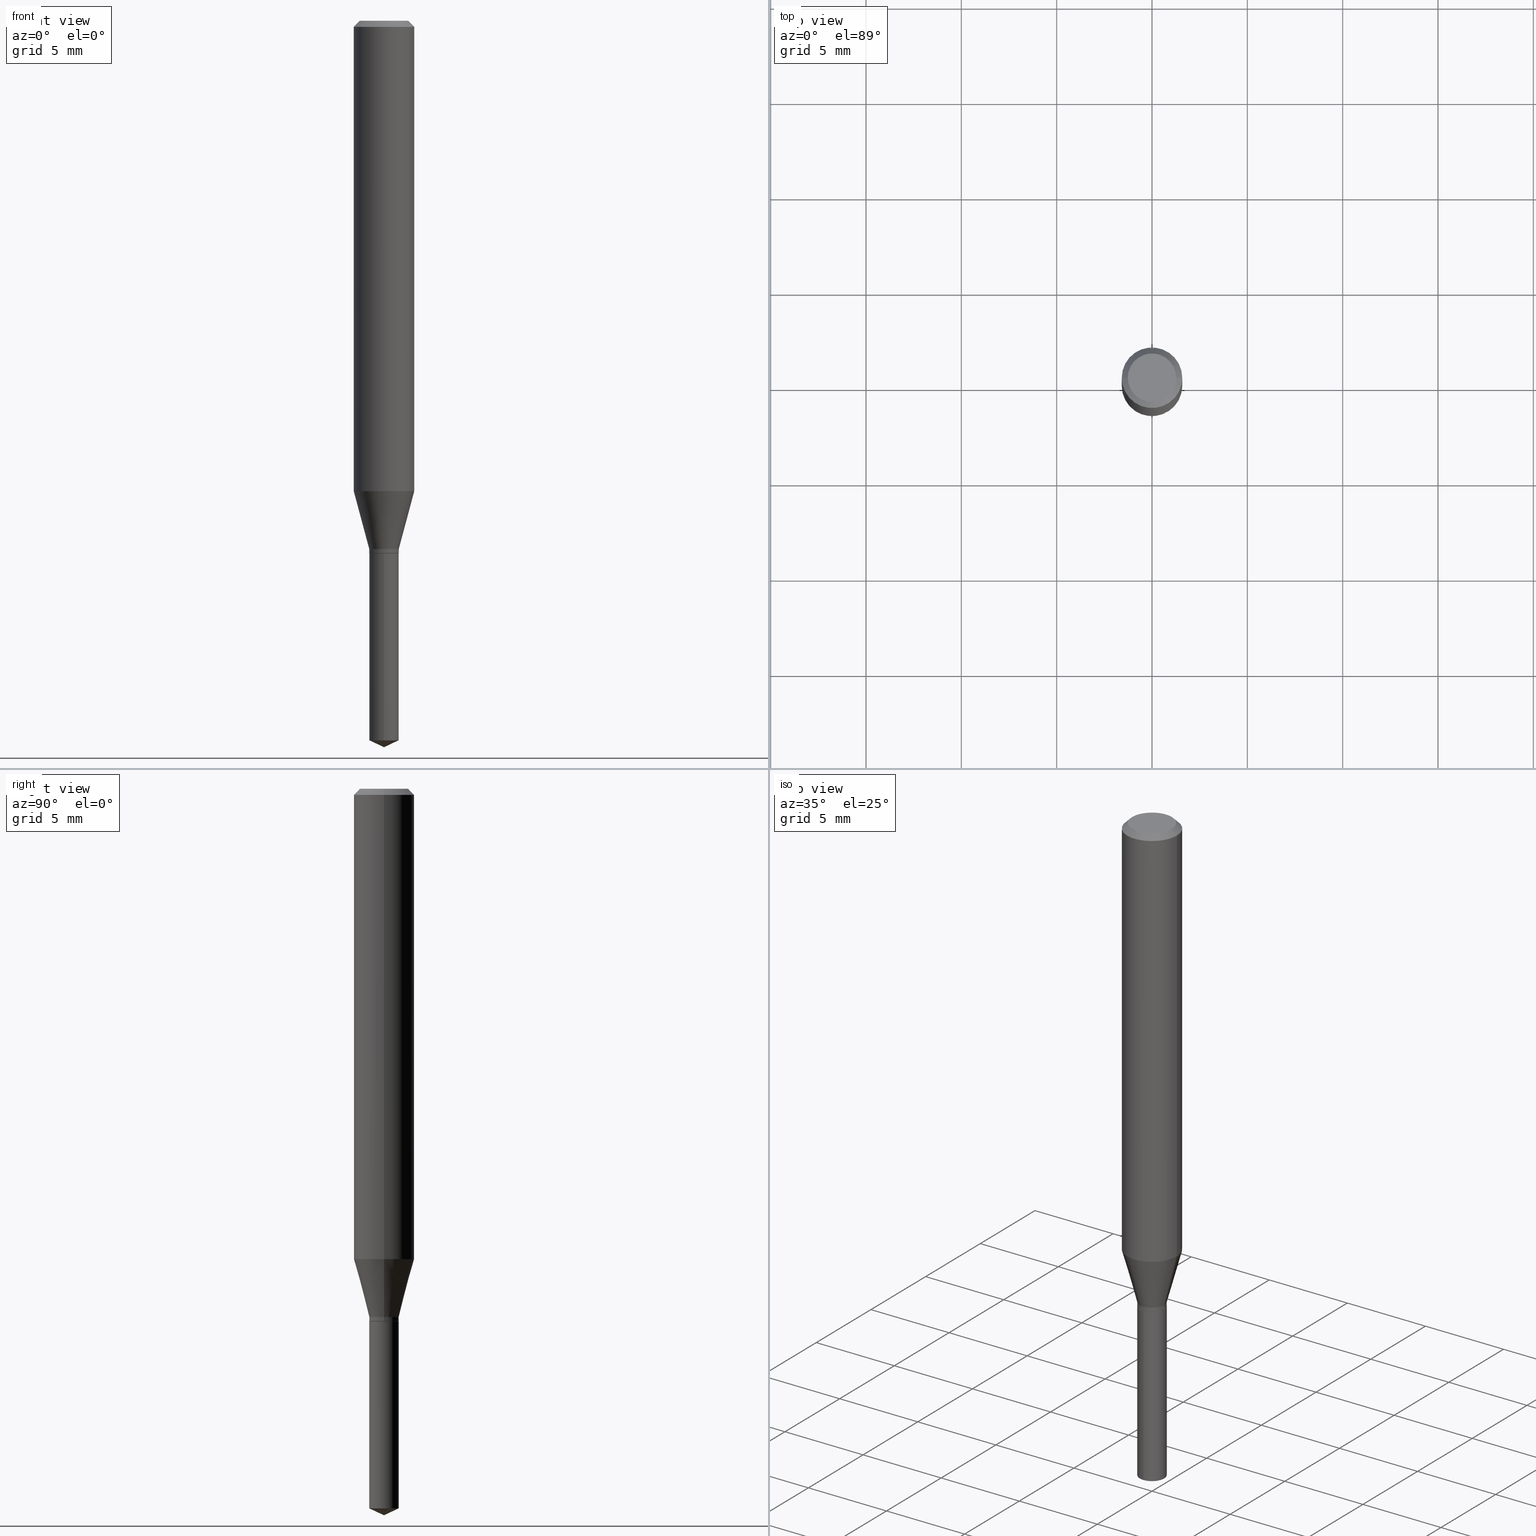
[diagram: canonical four-view strip — front | top / right | iso, engineering-drawing reading convention]
A machine part, canonical four-view strip (front | top / right | iso — engineering-drawing reading convention). The complete STEP part file that produces these views, byte-faithful:
ISO-10303-21;
HEADER;
FILE_DESCRIPTION (( 'STEP AP203' ),
    '1' );
FILE_NAME ('07173.STEP',
    '2024-04-23T19:53:03',
    ( '' ),
    ( '' ),
    'SwSTEP 2.0',
    'SolidWorks 2023',
    '' );
FILE_SCHEMA (( 'CONFIG_CONTROL_DESIGN' ));
ENDSEC;

DATA;
#1 = FACE_OUTER_BOUND ( 'NONE', #263, .T. ) ;
#2 = CC_DESIGN_PERSON_AND_ORGANIZATION_ASSIGNMENT ( #49, #34, ( #464 ) ) ;
#3 = CALENDAR_DATE ( 2024, 23, 4 ) ;
#4 = DIRECTION ( 'NONE',  ( -2.445468806185136597E-29, 3.491481338843145583E-15, 1.000000000000000000 ) ) ;
#5 = CYLINDRICAL_SURFACE ( 'NONE', #53, 0.06250000000000005551 ) ;
#6 = CIRCLE ( 'NONE', #36, 0.06250000000000000000 ) ;
#7 = AXIS2_PLACEMENT_3D ( 'NONE', #382, #159, #8 ) ;
#8 = DIRECTION ( 'NONE',  ( -6.982962677686265922E-15, -1.000000000000000000, 4.478439333875842027E-15 ) ) ;
#9 = LINE ( 'NONE', #281, #197 ) ;
#10 = ORIENTED_EDGE ( 'NONE', *, *, #187, .F. ) ;
#11 = CALENDAR_DATE ( 2024, 23, 4 ) ;
#12 = LINE ( 'NONE', #461, #118 ) ;
#13 = CONICAL_SURFACE ( 'NONE', #79, 0.03049999999999999586, 0.2617993877991499629 ) ;
#14 = CARTESIAN_POINT ( 'NONE',  ( 2.167155344068669628E-16, 0.03049999999999615866, -1.100000000000000089 ) ) ;
#15 = AXIS2_PLACEMENT_3D ( 'NONE', #455, #113, #44 ) ;
#16 = DIRECTION ( 'NONE',  ( -2.445399690415121530E-29, 3.491580316559632610E-15, 1.000000000000000000 ) ) ;
#17 = VERTEX_POINT ( 'NONE', #326 ) ;
#18 = FACE_OUTER_BOUND ( 'NONE', #209, .T. ) ;
#19 = LOCAL_TIME ( 15, 53, 3.000000000000000000, #155 ) ;
#20 = VERTEX_POINT ( 'NONE', #63 ) ;
#21 = EDGE_CURVE ( 'NONE', #20, #363, #23, .T. ) ;
#22 = CARTESIAN_POINT ( 'NONE',  ( 2.167155344068573979E-16, 0.03049999999999615519, -1.100000000000000089 ) ) ;
#23 = LINE ( 'NONE', #178, #395 ) ;
#24 = CARTESIAN_POINT ( 'NONE',  ( 2.690015686803650369E-29, -3.840629472727460101E-15, -1.100000000000000089 ) ) ;
#25 = ORIENTED_EDGE ( 'NONE', *, *, #309, .T. ) ;
#26 = ADVANCED_FACE ( 'NONE', ( #76 ), #153, .T. ) ;
#27 = LINE ( 'NONE', #22, #45 ) ;
#28 =( GEOMETRIC_REPRESENTATION_CONTEXT ( 3 ) GLOBAL_UNCERTAINTY_ASSIGNED_CONTEXT ( ( #105 ) ) GLOBAL_UNIT_ASSIGNED_CONTEXT ( ( #58, #359, #259 ) ) REPRESENTATION_CONTEXT ( 'NONE', 'WORKASPACE' ) );
#29 = ORIENTED_EDGE ( 'NONE', *, *, #222, .T. ) ;
#30 = DATE_AND_TIME ( #305, #236 ) ;
#31 = ORIENTED_EDGE ( 'NONE', *, *, #351, .T. ) ;
#32 = APPROVAL_DATE_TIME ( #121, #460 ) ;
#33 = FACE_OUTER_BOUND ( 'NONE', #398, .T. ) ;
#34 = PERSON_AND_ORGANIZATION_ROLE ( 'design_supplier' ) ;
#35 = DIRECTION ( 'NONE',  ( -2.445399690415121530E-29, 3.491580316559632610E-15, 1.000000000000000000 ) ) ;
#36 = AXIS2_PLACEMENT_3D ( 'NONE', #246, #469, #429 ) ;
#37 = EDGE_CURVE ( 'NONE', #176, #473, #338, .T. ) ;
#38 = AXIS2_PLACEMENT_3D ( 'NONE', #192, #4, #193 ) ;
#39 = PERSON_AND_ORGANIZATION_ROLE ( 'creator' ) ;
#40 = CARTESIAN_POINT ( 'NONE',  ( 2.690015686803650369E-29, -3.840629472727460101E-15, -1.100000000000000089 ) ) ;
#41 = CARTESIAN_POINT ( 'NONE',  ( 0.03049999999999999586, -4.020789909811766369E-15, -1.090600000000000014 ) ) ;
#42 = ADVANCED_FACE ( 'NONE', ( #1 ), #341, .T. ) ;
#43 = DIMENSIONAL_EXPONENTS ( 1.000000000000000000, 0.000000000000000000, 0.000000000000000000, 0.000000000000000000, 0.000000000000000000, 0.000000000000000000, 0.000000000000000000 ) ;
#44 = DIRECTION ( 'NONE',  ( -1.000000000000000000, 6.982962677686266711E-15, 0.000000000000000000 ) ) ;
#45 = VECTOR ( 'NONE', #223, 39.37007874015748143 ) ;
#46 = AXIS2_PLACEMENT_3D ( 'NONE', #388, #90, #167 ) ;
#47 = CARTESIAN_POINT ( 'NONE',  ( 3.056836007731442729E-31, -4.364351673553962300E-17, -0.01250000000000008916 ) ) ;
#48 = ORIENTED_EDGE ( 'NONE', *, *, #268, .T. ) ;
#49 = PERSON_AND_ORGANIZATION ( #449, #393 ) ;
#50 = CARTESIAN_POINT ( 'NONE',  ( -0.03049999999999999586, -3.606631105693356467E-15, -1.099499999999999922 ) ) ;
#51 = LINE ( 'NONE', #84, #142 ) ;
#52 = EDGE_CURVE ( 'NONE', #462, #363, #231, .T. ) ;
#53 = AXIS2_PLACEMENT_3D ( 'NONE', #343, #83, #109 ) ;
#54 = DIRECTION ( 'NONE',  ( -6.982962677686265922E-15, -1.000000000000000000, 0.000000000000000000 ) ) ;
#55 = DESIGN_CONTEXT ( 'detailed design', #190, 'design' ) ;
#56 = FACE_OUTER_BOUND ( 'NONE', #137, .T. ) ;
#57 = EDGE_LOOP ( 'NONE', ( #139, #29, #390, #277 ) ) ;
#58 =( CONVERSION_BASED_UNIT ( 'INCH', #291 ) LENGTH_UNIT ( ) NAMED_UNIT ( #43 ) );
#59 = EDGE_CURVE ( 'NONE', #404, #162, #271, .T. ) ;
#60 = ORIENTED_EDGE ( 'NONE', *, *, #216, .F. ) ;
#61 = AXIS2_PLACEMENT_3D ( 'NONE', #47, #314, #319 ) ;
#62 = CARTESIAN_POINT ( 'NONE',  ( -0.06250000000000012490, -2.946747994284551649E-15, -0.9711743741577958389 ) ) ;
#63 = CARTESIAN_POINT ( 'NONE',  ( 3.668099535622682715E-29, -5.237370474839449507E-15, -1.500000000000000222 ) ) ;
#64 = DIRECTION ( 'NONE',  ( -2.445468806185136877E-29, 3.491481338843145188E-15, 1.000000000000000000 ) ) ;
#65 = ORIENTED_EDGE ( 'NONE', *, *, #445, .T. ) ;
#66 = EDGE_CURVE ( 'NONE', #258, #290, #213, .T. ) ;
#67 = CARTESIAN_POINT ( 'NONE',  ( 0.03049999999999999586, -4.020789909811766369E-15, -1.090600000000000014 ) ) ;
#68 = ORIENTED_EDGE ( 'NONE', *, *, #268, .F. ) ;
#69 = DIRECTION ( 'NONE',  ( 2.445399690415121250E-29, -3.491580316559632610E-15, -1.000000000000000000 ) ) ;
#70 = CIRCLE ( 'NONE', #61, 0.06250000000000000000 ) ;
#71 = ORIENTED_EDGE ( 'NONE', *, *, #21, .T. ) ;
#72 = CONICAL_SURFACE ( 'NONE', #490, 0.02999999999999999542, 0.7853981633974141952 ) ;
#73 = DATE_AND_TIME ( #11, #19 ) ;
#74 = CARTESIAN_POINT ( 'NONE',  ( 3.056836007731442729E-31, -4.364351673553962300E-17, -0.01250000000000008916 ) ) ;
#75 = ADVANCED_FACE ( 'NONE', ( #308 ), #72, .T. ) ;
#76 = FACE_OUTER_BOUND ( 'NONE', #333, .T. ) ;
#77 = PERSON_AND_ORGANIZATION_ROLE ( 'classification_officer' ) ;
#78 = CYLINDRICAL_SURFACE ( 'NONE', #211, 0.03049999999999999586 ) ;
#79 = AXIS2_PLACEMENT_3D ( 'NONE', #430, #235, #202 ) ;
#80 = CONICAL_SURFACE ( 'NONE', #411, 0.03049999999999999586, 0.2617993877991499629 ) ;
#81 = CARTESIAN_POINT ( 'NONE',  ( 0.06250000000000000000, -4.724246415962603826E-16, -0.01250000000000008916 ) ) ;
#82 = PRODUCT_RELATED_PRODUCT_CATEGORY ( 'detail', '', ( #280 ) ) ;
#83 = DIRECTION ( 'NONE',  ( -2.445468806185136597E-29, 3.491481338843145583E-15, 1.000000000000000000 ) ) ;
#84 = CARTESIAN_POINT ( 'NONE',  ( -0.03049999999999999586, -3.591094013735504691E-15, -1.090600000000000014 ) ) ;
#85 = PERSON_AND_ORGANIZATION ( #449, #393 ) ;
#86 = CIRCLE ( 'NONE', #456, 0.03049999999999999586 ) ;
#87 = DIRECTION ( 'NONE',  ( -2.445468806185136597E-29, 3.491481338843145583E-15, 1.000000000000000000 ) ) ;
#88 = ORIENTED_EDGE ( 'NONE', *, *, #351, .F. ) ;
#89 = PERSON_AND_ORGANIZATION ( #449, #393 ) ;
#90 = DIRECTION ( 'NONE',  ( -2.445468806185136597E-29, 3.491481338843145583E-15, 1.000000000000000000 ) ) ;
#91 = ADVANCED_FACE ( 'NONE', ( #420 ), #5, .T. ) ;
#92 = ORIENTED_EDGE ( 'NONE', *, *, #396, .T. ) ;
#93 = CARTESIAN_POINT ( 'NONE',  ( -0.06250000000000000000, 3.927916506198520587E-16, -0.01250000000000008916 ) ) ;
#94 = CONICAL_SURFACE ( 'NONE', #116, 84.42940631927602624, 1.134464013796323556 ) ;
#95 = CARTESIAN_POINT ( 'NONE',  ( 3.633396150581541585E-29, -5.187603004810727397E-15, -1.485777616426273040 ) ) ;
#96 = ORIENTED_EDGE ( 'NONE', *, *, #66, .F. ) ;
#97 = ADVANCED_FACE ( 'NONE', ( #375 ), #270, .F. ) ;
#98 = LINE ( 'NONE', #67, #329 ) ;
#99 = VERTEX_POINT ( 'NONE', #339 ) ;
#100 = DIRECTION ( 'NONE',  ( 1.000000000000000000, -6.982962677686265922E-15, 4.875957971899673662E-29 ) ) ;
#101 = ORIENTED_EDGE ( 'NONE', *, *, #110, .T. ) ;
#102 = ORIENTED_EDGE ( 'NONE', *, *, #37, .T. ) ;
#103 = DIRECTION ( 'NONE',  ( -6.982962677686268288E-15, -1.000000000000000000, 3.520397390770383661E-15 ) ) ;
#104 = ORIENTED_EDGE ( 'NONE', *, *, #187, .T. ) ;
#105 = UNCERTAINTY_MEASURE_WITH_UNIT (LENGTH_MEASURE( 1.000000000000000082E-05 ), #58, 'distance_accuracy_value', 'NONE');
#106 = CARTESIAN_POINT ( 'NONE',  ( 3.668252923656895710E-29, -5.237152723863177100E-15, -1.500000000000000222 ) ) ;
#107 = VERTEX_POINT ( 'NONE', #154 ) ;
#108 = APPROVAL_ROLE ( '' ) ;
#109 = DIRECTION ( 'NONE',  ( 1.000000000000000000, -6.982962677686267499E-15, 4.876176775795936353E-29 ) ) ;
#110 = EDGE_CURVE ( 'NONE', #363, #404, #302, .T. ) ;
#111 = SHAPE_DEFINITION_REPRESENTATION ( #160, #245 ) ;
#112 = DIRECTION ( 'NONE',  ( -2.445468806185136597E-29, 3.491481338843145583E-15, 1.000000000000000000 ) ) ;
#113 = DIRECTION ( 'NONE',  ( 2.445468806185136597E-29, -3.491481338843145583E-15, -1.000000000000000000 ) ) ;
#114 = MANIFOLD_SOLID_BREP ( 'Body-Move/Copy2[2]', #323 ) ;
#115 = DIRECTION ( 'NONE',  ( 1.000000000000000000, -6.982962677686269866E-15, 0.000000000000000000 ) ) ;
#116 = AXIS2_PLACEMENT_3D ( 'NONE', #180, #399, #177 ) ;
#117 = ADVANCED_FACE ( 'NONE', ( #487 ), #248, .T. ) ;
#118 = VECTOR ( 'NONE', #355, 39.37007874015748143 ) ;
#119 = DIRECTION ( 'NONE',  ( -2.445399690415121530E-29, 3.491580316559632610E-15, 1.000000000000000000 ) ) ;
#120 = DIRECTION ( 'NONE',  ( -6.982962677686265922E-15, -1.000000000000000000, 4.478439333875842027E-15 ) ) ;
#121 = DATE_AND_TIME ( #3, #384 ) ;
#122 = DIRECTION ( 'NONE',  ( -2.445468806185136877E-29, 3.491481338843145188E-15, 1.000000000000000000 ) ) ;
#123 = MANIFOLD_SOLID_BREP ( 'Body-Move/Copy2[1]', #257 ) ;
#124 = ORIENTED_EDGE ( 'NONE', *, *, #52, .F. ) ;
#125 = CC_DESIGN_SECURITY_CLASSIFICATION ( #151, ( #464 ) ) ;
#126 = DATE_TIME_ROLE ( 'classification_date' ) ;
#127 = APPLICATION_CONTEXT ( 'configuration controlled 3d designs of mechanical parts and assemblies' ) ;
#128 = EDGE_CURVE ( 'NONE', #473, #17, #345, .T. ) ;
#129 = DIRECTION ( 'NONE',  ( -2.445468806185136597E-29, 3.491481338843145583E-15, 1.000000000000000000 ) ) ;
#130 = VERTEX_POINT ( 'NONE', #414 ) ;
#131 = CYLINDRICAL_SURFACE ( 'NONE', #378, 0.06250000000000005551 ) ;
#132 = CARTESIAN_POINT ( 'NONE',  ( -0.02999999999999999542, -3.627466651999429856E-15, -1.100000000000000089 ) ) ;
#133 = ADVANCED_FACE ( 'NONE', ( #33 ), #80, .T. ) ;
#134 = AXIS2_PLACEMENT_3D ( 'NONE', #140, #69, #253 ) ;
#135 = VECTOR ( 'NONE', #265, 39.37007874015748143 ) ;
#136 = CARTESIAN_POINT ( 'NONE',  ( 2.167155344068668396E-16, 0.03049999999999481251, -1.485777616426273040 ) ) ;
#137 = EDGE_LOOP ( 'NONE', ( #65, #372, #68, #141 ) ) ;
#138 = CYLINDRICAL_SURFACE ( 'NONE', #293, 0.03049999999999999586 ) ;
#139 = ORIENTED_EDGE ( 'NONE', *, *, #288, .F. ) ;
#140 = CARTESIAN_POINT ( 'NONE',  ( 2.690015686803650369E-29, -3.840629472727460101E-15, -1.100000000000000089 ) ) ;
#141 = ORIENTED_EDGE ( 'NONE', *, *, #179, .F. ) ;
#142 = VECTOR ( 'NONE', #394, 39.37007874015748854 ) ;
#143 =( LENGTH_UNIT ( ) NAMED_UNIT ( * ) SI_UNIT ( $, .METRE. ) );
#144 = EDGE_CURVE ( 'NONE', #107, #145, #294, .T. ) ;
#145 = VERTEX_POINT ( 'NONE', #41 ) ;
#146 = DIRECTION ( 'NONE',  ( -2.445468806185136597E-29, 3.491481338843145583E-15, 1.000000000000000000 ) ) ;
#147 = ORIENTED_EDGE ( 'NONE', *, *, #244, .F. ) ;
#148 = EDGE_LOOP ( 'NONE', ( #255, #240, #250, #400 ) ) ;
#149 = ADVANCED_FACE ( 'NONE', ( #335 ), #78, .T. ) ;
#150 = APPROVAL_DATE_TIME ( #486, #467 ) ;
#151 = SECURITY_CLASSIFICATION ( '', '', #379 ) ;
#152 = DIRECTION ( 'NONE',  ( -2.445468806185136597E-29, 3.491481338843145583E-15, 1.000000000000000000 ) ) ;
#153 = CONICAL_SURFACE ( 'NONE', #427, 0.06250000000000000000, 0.7853981633974449483 ) ;
#154 = CARTESIAN_POINT ( 'NONE',  ( -0.03049999999999999586, -3.606631105693356467E-15, -1.090600000000000014 ) ) ;
#155 = COORDINATED_UNIVERSAL_TIME_OFFSET ( 5, 0, .BEHIND. ) ;
#156 = ADVANCED_FACE ( 'NONE', ( #415 ), #380, .T. ) ;
#157 = DIRECTION ( 'NONE',  ( -2.445468806185136597E-29, 3.491481338843145583E-15, 1.000000000000000000 ) ) ;
#158 = CARTESIAN_POINT ( 'NONE',  ( 2.688792952400557567E-29, -3.838883732058038598E-15, -1.099499999999999922 ) ) ;
#159 = DIRECTION ( 'NONE',  ( -2.445399690415121530E-29, 3.491580316559632610E-15, 1.000000000000000000 ) ) ;
#160 = PRODUCT_DEFINITION_SHAPE ( 'NONE', 'NONE',  #170 ) ;
#161 = CARTESIAN_POINT ( 'NONE',  ( 0.03049999999999999586, -2.129803616694311268E-16, 1.487233916617760256E-30 ) ) ;
#162 = VERTEX_POINT ( 'NONE', #14 ) ;
#163 = APPROVAL_DATE_TIME ( #73, #254 ) ;
#164 = CC_DESIGN_PERSON_AND_ORGANIZATION_ASSIGNMENT ( #85, #301, ( #464 ) ) ;
#165 = CARTESIAN_POINT ( 'NONE',  ( 2.688792952400557567E-29, -3.838883732058038598E-15, -1.099499999999999922 ) ) ;
#166 = AXIS2_PLACEMENT_3D ( 'NONE', #306, #233, #447 ) ;
#167 = DIRECTION ( 'NONE',  ( 1.000000000000000000, -6.982962677686269077E-15, 0.000000000000000000 ) ) ;
#168 = ORIENTED_EDGE ( 'NONE', *, *, #216, .T. ) ;
#169 = DIRECTION ( 'NONE',  ( 1.000000000000000000, -6.982962677686264344E-15, 0.000000000000000000 ) ) ;
#170 = PRODUCT_DEFINITION ( 'UNKNOWN', '', #464, #55 ) ;
#171 = DIRECTION ( 'NONE',  ( -2.445468806185136597E-29, 3.491481338843145583E-15, 1.000000000000000000 ) ) ;
#172 = ORIENTED_EDGE ( 'NONE', *, *, #454, .F. ) ;
#173 = VECTOR ( 'NONE', #362, 39.37007874015748854 ) ;
#174 = AXIS2_PLACEMENT_3D ( 'NONE', #195, #191, #115 ) ;
#175 = LINE ( 'NONE', #324, #439 ) ;
#176 = VERTEX_POINT ( 'NONE', #239 ) ;
#177 = DIRECTION ( 'NONE',  ( -6.982962677686268288E-15, -1.000000000000000000, 3.520397390770383661E-15 ) ) ;
#178 = CARTESIAN_POINT ( 'NONE',  ( 3.668099535622682155E-29, -5.237370474839448718E-15, -1.500000000000000222 ) ) ;
#179 = EDGE_CURVE ( 'NONE', #331, #17, #12, .T. ) ;
#180 = CARTESIAN_POINT ( 'NONE',  ( -9.260740279983036507E-28, 1.322265303911854087E-13, 37.87007874015748143 ) ) ;
#181 = ORIENTED_EDGE ( 'NONE', *, *, #438, .T. ) ;
#182 = VECTOR ( 'NONE', #199, 39.37007874015748854 ) ;
#183 = FACE_OUTER_BOUND ( 'NONE', #360, .T. ) ;
#184 = CIRCLE ( 'NONE', #433, 0.03049999999999999586 ) ;
#185 = ORIENTED_EDGE ( 'NONE', *, *, #261, .F. ) ;
#186 = PERSON_AND_ORGANIZATION ( #449, #393 ) ;
#187 = EDGE_CURVE ( 'NONE', #290, #258, #184, .T. ) ;
#188 = EDGE_LOOP ( 'NONE', ( #321, #71, #124 ) ) ;
#189 = APPLICATION_PROTOCOL_DEFINITION ( 'international standard', 'config_control_design', 1994, #127 ) ;
#190 = APPLICATION_CONTEXT ( 'configuration controlled 3d designs of mechanical parts and assemblies' ) ;
#191 = DIRECTION ( 'NONE',  ( -2.445468806185136597E-29, 3.491481338843145583E-15, 1.000000000000000000 ) ) ;
#192 = CARTESIAN_POINT ( 'NONE',  ( 3.893286209682126177E-47, -5.558580879666067980E-33, -1.592040838891559689E-18 ) ) ;
#193 = DIRECTION ( 'NONE',  ( 1.000000000000000000, -6.982962677686265922E-15, 4.875957971899673662E-29 ) ) ;
#194 = CC_DESIGN_DATE_AND_TIME_ASSIGNMENT ( #463, #126, ( #151 ) ) ;
#195 = CARTESIAN_POINT ( 'NONE',  ( 2.667028280025510409E-29, -3.807809548142335045E-15, -1.090600000000000014 ) ) ;
#196 = DIRECTION ( 'NONE',  ( 1.000000000000000000, -6.982962677686269077E-15, 0.000000000000000000 ) ) ;
#197 = VECTOR ( 'NONE', #465, 39.37007874015748143 ) ;
#198 = CIRCLE ( 'NONE', #472, 0.02999999999999999542 ) ;
#199 = DIRECTION ( 'NONE',  ( -0.7071067811865232589, 7.493145998870265808E-15, 0.7071067811865715536 ) ) ;
#200 = EDGE_CURVE ( 'NONE', #99, #348, #285, .T. ) ;
#201 = ORIENTED_EDGE ( 'NONE', *, *, #303, .F. ) ;
#202 = DIRECTION ( 'NONE',  ( 1.000000000000000000, -6.982962677686269866E-15, 0.000000000000000000 ) ) ;
#203 = FACE_OUTER_BOUND ( 'NONE', #210, .T. ) ;
#204 = AXIS2_PLACEMENT_3D ( 'NONE', #441, #408, #367 ) ;
#205 = AXIS2_PLACEMENT_3D ( 'NONE', #419, #119, #272 ) ;
#206 = CC_DESIGN_PERSON_AND_ORGANIZATION_ASSIGNMENT ( #89, #267, ( #280 ) ) ;
#207 = DIRECTION ( 'NONE',  ( -2.445468806185136597E-29, 3.491481338843145583E-15, 1.000000000000000000 ) ) ;
#208 = CARTESIAN_POINT ( 'NONE',  ( 1.946643104841063088E-47, -2.779290439833033990E-33, -7.960204194457798443E-19 ) ) ;
#209 = EDGE_LOOP ( 'NONE', ( #102, #92 ) ) ;
#210 = EDGE_LOOP ( 'NONE', ( #365, #354, #480, #220 ) ) ;
#211 = AXIS2_PLACEMENT_3D ( 'NONE', #452, #112, #266 ) ;
#212 = LOCAL_TIME ( 15, 53, 3.000000000000000000, #459 ) ;
#213 = CIRCLE ( 'NONE', #346, 0.03049999999999999586 ) ;
#214 = DIRECTION ( 'NONE',  ( 1.000000000000000000, -6.982962677686264344E-15, 0.000000000000000000 ) ) ;
#215 = EDGE_LOOP ( 'NONE', ( #483, #279, #31, #10 ) ) ;
#216 = EDGE_CURVE ( 'NONE', #348, #99, #198, .T. ) ;
#217 = FACE_OUTER_BOUND ( 'NONE', #188, .T. ) ;
#218 = ORIENTED_EDGE ( 'NONE', *, *, #309, .F. ) ;
#219 = DIRECTION ( 'NONE',  ( -2.445399690415121530E-29, 3.491580316559632610E-15, 1.000000000000000000 ) ) ;
#220 = ORIENTED_EDGE ( 'NONE', *, *, #476, .F. ) ;
#221 = CIRCLE ( 'NONE', #352, 0.04999999999999999584 ) ;
#222 = EDGE_CURVE ( 'NONE', #435, #331, #386, .T. ) ;
#223 = DIRECTION ( 'NONE',  ( -2.445399690415121810E-29, 3.491580316559632610E-15, 1.000000000000000000 ) ) ;
#224 = EDGE_LOOP ( 'NONE', ( #437, #468, #101, #172 ) ) ;
#225 = CARTESIAN_POINT ( 'NONE',  ( 3.633396150581541585E-29, -5.187603004810727397E-15, -1.485777616426273040 ) ) ;
#226 = PERSON_AND_ORGANIZATION ( #449, #393 ) ;
#227 = DIRECTION ( 'NONE',  ( -1.000000000000000000, 6.982962677686266711E-15, 0.000000000000000000 ) ) ;
#228 = CONICAL_SURFACE ( 'NONE', #204, 0.02999999999999999542, 0.7853981633974141952 ) ;
#229 = DIRECTION ( 'NONE',  ( 0.000000000000000000, 0.000000000000000000, 1.000000000000000000 ) ) ;
#230 = CARTESIAN_POINT ( 'NONE',  ( 2.690015686803650369E-29, -3.840629472727460101E-15, -1.100000000000000089 ) ) ;
#231 = CIRCLE ( 'NONE', #450, 0.03049999999999999586 ) ;
#232 = DIRECTION ( 'NONE',  ( -2.445468806185136597E-29, 3.491481338843145583E-15, 1.000000000000000000 ) ) ;
#233 = DIRECTION ( 'NONE',  ( -2.438088387897960049E-29, 3.491481338843145188E-15, 1.000000000000000000 ) ) ;
#234 = ADVANCED_FACE ( 'NONE', ( #56 ), #131, .T. ) ;
#235 = DIRECTION ( 'NONE',  ( -2.445468806185136597E-29, 3.491481338843145583E-15, 1.000000000000000000 ) ) ;
#236 = LOCAL_TIME ( 15, 53, 3.000000000000000000, #373 ) ;
#237 = AXIS2_PLACEMENT_3D ( 'NONE', #466, #432, #169 ) ;
#238 = APPROVAL_ROLE ( '' ) ;
#239 = CARTESIAN_POINT ( 'NONE',  ( -0.04999999999999999584, 3.709698922520826725E-16, -1.592040838894077649E-18 ) ) ;
#240 = ORIENTED_EDGE ( 'NONE', *, *, #37, .F. ) ;
#241 = APPROVAL_STATUS ( 'not_yet_approved' ) ;
#242 = CARTESIAN_POINT ( 'NONE',  ( 0.000000000000000000, 0.000000000000000000, 0.000000000000000000 ) ) ;
#243 = ORIENTED_EDGE ( 'NONE', *, *, #273, .T. ) ;
#244 = EDGE_CURVE ( 'NONE', #145, #107, #86, .T. ) ;
#245 = ADVANCED_BREP_SHAPE_REPRESENTATION ( '07173', ( #123, #114, #448 ), #28 ) ;
#246 = CARTESIAN_POINT ( 'NONE',  ( 3.056836007731442729E-31, -4.364351673553962300E-17, -0.01250000000000008916 ) ) ;
#247 = ORIENTED_EDGE ( 'NONE', *, *, #222, .F. ) ;
#248 = CONICAL_SURFACE ( 'NONE', #15, 0.06250000000000000000, 0.7853981633974449483 ) ;
#249 = DIRECTION ( 'NONE',  ( 2.438088387897960049E-29, -3.491481338843145188E-15, -1.000000000000000000 ) ) ;
#250 = ORIENTED_EDGE ( 'NONE', *, *, #303, .T. ) ;
#251 = DIRECTION ( 'NONE',  ( 0.2588190451025212391, 1.565188264969622362E-15, 0.9659258262890679791 ) ) ;
#252 = EDGE_LOOP ( 'NONE', ( #402, #368 ) ) ;
#253 = DIRECTION ( 'NONE',  ( 6.982962677686265922E-15, 1.000000000000000000, -3.491580316559632610E-15 ) ) ;
#254 = APPROVAL ( #387, 'UNSPECIFIED' ) ;
#255 = ORIENTED_EDGE ( 'NONE', *, *, #128, .F. ) ;
#256 = VECTOR ( 'NONE', #397, 39.37007874015748143 ) ;
#257 = CLOSED_SHELL ( 'NONE', ( #42, #381, #482, #156, #405 ) ) ;
#258 = VERTEX_POINT ( 'NONE', #274 ) ;
#259 =( NAMED_UNIT ( * ) SI_UNIT ( $, .STERADIAN. ) SOLID_ANGLE_UNIT ( ) );
#260 = ORIENTED_EDGE ( 'NONE', *, *, #66, .T. ) ;
#261 = EDGE_CURVE ( 'NONE', #107, #435, #51, .T. ) ;
#262 = FACE_OUTER_BOUND ( 'NONE', #440, .T. ) ;
#263 = EDGE_LOOP ( 'NONE', ( #328, #181, #442, #356 ) ) ;
#264 = CIRCLE ( 'NONE', #322, 0.03049999999999999586 ) ;
#265 = DIRECTION ( 'NONE',  ( 0.7071067811865451302, -7.319954787623248157E-15, -0.7071067811865499042 ) ) ;
#266 = DIRECTION ( 'NONE',  ( 1.000000000000000000, -6.982962677686267499E-15, 4.876176775795935793E-29 ) ) ;
#267 = PERSON_AND_ORGANIZATION_ROLE ( 'design_owner' ) ;
#268 = EDGE_CURVE ( 'NONE', #17, #130, #70, .T. ) ;
#269 = CARTESIAN_POINT ( 'NONE',  ( 2.667028280025510409E-29, -3.807809548142335045E-15, -1.090600000000000014 ) ) ;
#270 = PLANE ( 'NONE',  #166 ) ;
#271 = CIRCLE ( 'NONE', #7, 0.03049999999999999586 ) ;
#272 = DIRECTION ( 'NONE',  ( -6.982962677686265922E-15, -1.000000000000000000, 4.478439333875842027E-15 ) ) ;
#273 = EDGE_CURVE ( 'NONE', #99, #290, #347, .T. ) ;
#274 = CARTESIAN_POINT ( 'NONE',  ( 0.03049999999999999586, -4.051864093727469922E-15, -1.099499999999999922 ) ) ;
#275 = DIRECTION ( 'NONE',  ( -2.445399690415121530E-29, 3.491580316559632610E-15, 1.000000000000000000 ) ) ;
#276 = LOCAL_TIME ( 15, 53, 3.000000000000000000, #446 ) ;
#277 = ORIENTED_EDGE ( 'NONE', *, *, #316, .F. ) ;
#278 = LINE ( 'NONE', #161, #418 ) ;
#279 = ORIENTED_EDGE ( 'NONE', *, *, #200, .T. ) ;
#280 = PRODUCT ( '07173', '07173', '', ( #334 ) ) ;
#281 = CARTESIAN_POINT ( 'NONE',  ( -0.06250000000000005551, 4.440892098500630106E-16, -3.074334431409318916E-30 ) ) ;
#282 = CC_DESIGN_PERSON_AND_ORGANIZATION_ASSIGNMENT ( #186, #77, ( #151 ) ) ;
#283 = CARTESIAN_POINT ( 'NONE',  ( 0.06250000000000012490, -3.827272371490007513E-15, -0.9711743741577958389 ) ) ;
#284 = AXIS2_PLACEMENT_3D ( 'NONE', #95, #275, #54 ) ;
#285 = CIRCLE ( 'NONE', #46, 0.02999999999999999542 ) ;
#286 = CARTESIAN_POINT ( 'NONE',  ( 0.04999999999999999584, -4.077247707424184705E-16, -1.592040838888913461E-18 ) ) ;
#287 = ORIENTED_EDGE ( 'NONE', *, *, #200, .F. ) ;
#288 = EDGE_CURVE ( 'NONE', #435, #130, #9, .T. ) ;
#289 = FACE_OUTER_BOUND ( 'NONE', #318, .T. ) ;
#290 = VERTEX_POINT ( 'NONE', #50 ) ;
#291 = LENGTH_MEASURE_WITH_UNIT ( LENGTH_MEASURE( 0.02539999999999999897 ), #143 );
#292 = ORIENTED_EDGE ( 'NONE', *, *, #336, .F. ) ;
#293 = AXIS2_PLACEMENT_3D ( 'NONE', #436, #327, #434 ) ;
#294 = CIRCLE ( 'NONE', #174, 0.03049999999999999586 ) ;
#295 = ADVANCED_FACE ( 'NONE', ( #203 ), #13, .T. ) ;
#296 = ORIENTED_EDGE ( 'NONE', *, *, #21, .F. ) ;
#297 = CARTESIAN_POINT ( 'NONE',  ( -2.129803616694041823E-16, -0.03050000000000384001, -1.099999999999999867 ) ) ;
#298 = ORIENTED_EDGE ( 'NONE', *, *, #144, .T. ) ;
#299 = PERSON_AND_ORGANIZATION ( #449, #393 ) ;
#300 = ORIENTED_EDGE ( 'NONE', *, *, #128, .T. ) ;
#301 = PERSON_AND_ORGANIZATION_ROLE ( 'creator' ) ;
#302 = LINE ( 'NONE', #304, #423 ) ;
#303 = EDGE_CURVE ( 'NONE', #176, #130, #350, .T. ) ;
#304 = CARTESIAN_POINT ( 'NONE',  ( -2.129803616694041823E-16, -0.03050000000000384001, -1.099999999999999867 ) ) ;
#305 = CALENDAR_DATE ( 2024, 23, 4 ) ;
#306 = CARTESIAN_POINT ( 'NONE',  ( 2.690015686803650369E-29, -3.840629472727460101E-15, -1.100000000000000089 ) ) ;
#307 = APPROVAL_PERSON_ORGANIZATION ( #226, #460, #238 ) ;
#308 = FACE_OUTER_BOUND ( 'NONE', #215, .T. ) ;
#309 = EDGE_CURVE ( 'NONE', #258, #145, #278, .T. ) ;
#310 = CARTESIAN_POINT ( 'NONE',  ( 0.02999999999999999542, -4.050118353058048418E-15, -1.100000000000000089 ) ) ;
#311 = CARTESIAN_POINT ( 'NONE',  ( 2.690015686803650369E-29, -3.840629472727460101E-15, -1.100000000000000089 ) ) ;
#312 = CALENDAR_DATE ( 2024, 23, 4 ) ;
#313 = CIRCLE ( 'NONE', #284, 0.03049999999999999586 ) ;
#314 = DIRECTION ( 'NONE',  ( -2.445468806185136597E-29, 3.491481338843145583E-15, 1.000000000000000000 ) ) ;
#315 = ORIENTED_EDGE ( 'NONE', *, *, #366, .T. ) ;
#316 = EDGE_CURVE ( 'NONE', #130, #17, #6, .T. ) ;
#317 = DIRECTION ( 'NONE',  ( 1.000000000000000000, -6.982962677686267499E-15, 4.876176775795936353E-29 ) ) ;
#318 = EDGE_LOOP ( 'NONE', ( #444, #104, #25, #485 ) ) ;
#319 = DIRECTION ( 'NONE',  ( 1.000000000000000000, -6.982962677686266711E-15, 0.000000000000000000 ) ) ;
#320 = DIRECTION ( 'NONE',  ( -2.445399690415121530E-29, 3.491580316559632610E-15, 1.000000000000000000 ) ) ;
#321 = ORIENTED_EDGE ( 'NONE', *, *, #366, .F. ) ;
#322 = AXIS2_PLACEMENT_3D ( 'NONE', #24, #320, #471 ) ;
#323 = CLOSED_SHELL ( 'NONE', ( #412, #26, #234, #295, #149, #389, #133, #91, #117, #342, #97, #75 ) ) ;
#324 = CARTESIAN_POINT ( 'NONE',  ( -0.03049999999999999586, 2.167155344068305273E-16, -1.500275202527746071E-30 ) ) ;
#325 = EDGE_LOOP ( 'NONE', ( #60, #287 ) ) ;
#326 = CARTESIAN_POINT ( 'NONE',  ( 0.06250000000000000000, -4.800786840909313294E-16, -0.01250000000000008916 ) ) ;
#327 = DIRECTION ( 'NONE',  ( -2.445468806185136597E-29, 3.491481338843145583E-15, 1.000000000000000000 ) ) ;
#328 = ORIENTED_EDGE ( 'NONE', *, *, #336, .T. ) ;
#329 = VECTOR ( 'NONE', #251, 39.37007874015748854 ) ;
#330 = CARTESIAN_POINT ( 'NONE',  ( -9.260740279983036507E-28, 1.322265303911854087E-13, 37.87007874015748143 ) ) ;
#331 = VERTEX_POINT ( 'NONE', #283 ) ;
#332 = PERSON_AND_ORGANIZATION ( #449, #393 ) ;
#333 = EDGE_LOOP ( 'NONE', ( #407, #300, #48, #201 ) ) ;
#334 = MECHANICAL_CONTEXT ( 'NONE', #127, 'mechanical' ) ;
#335 = FACE_OUTER_BOUND ( 'NONE', #475, .T. ) ;
#336 = EDGE_CURVE ( 'NONE', #363, #462, #313, .T. ) ;
#337 = APPROVAL_PERSON_ORGANIZATION ( #376, #254, #416 ) ;
#338 = CIRCLE ( 'NONE', #38, 0.04999999999999999584 ) ;
#339 = CARTESIAN_POINT ( 'NONE',  ( -0.02999999999999999542, -3.624817424825318655E-15, -1.100000000000000089 ) ) ;
#340 = DIRECTION ( 'NONE',  ( 1.000000000000000000, 0.000000000000000000, 0.000000000000000000 ) ) ;
#341 = CYLINDRICAL_SURFACE ( 'NONE', #205, 0.03049999999999999586 ) ;
#342 = ADVANCED_FACE ( 'NONE', ( #18 ), #353, .F. ) ;
#343 = CARTESIAN_POINT ( 'NONE',  ( 0.000000000000000000, 0.000000000000000000, 0.000000000000000000 ) ) ;
#344 = VECTOR ( 'NONE', #406, 39.37007874015748143 ) ;
#345 = LINE ( 'NONE', #81, #135 ) ;
#346 = AXIS2_PLACEMENT_3D ( 'NONE', #158, #152, #453 ) ;
#347 = LINE ( 'NONE', #132, #182 ) ;
#348 = VERTEX_POINT ( 'NONE', #310 ) ;
#349 = DATE_TIME_ROLE ( 'creation_date' ) ;
#350 = LINE ( 'NONE', #93, #256 ) ;
#351 = EDGE_CURVE ( 'NONE', #348, #258, #478, .T. ) ;
#352 = AXIS2_PLACEMENT_3D ( 'NONE', #403, #146, #100 ) ;
#353 = PLANE ( 'NONE',  #410 ) ;
#354 = ORIENTED_EDGE ( 'NONE', *, *, #261, .T. ) ;
#355 = DIRECTION ( 'NONE',  ( -2.445468806185136877E-29, 3.491481338843145188E-15, 1.000000000000000000 ) ) ;
#356 = ORIENTED_EDGE ( 'NONE', *, *, #110, .F. ) ;
#357 = DIRECTION ( 'NONE',  ( -1.000000000000000000, 6.982962677686265922E-15, -4.876176775795935793E-29 ) ) ;
#358 = EDGE_CURVE ( 'NONE', #290, #107, #175, .T. ) ;
#359 =( NAMED_UNIT ( * ) PLANE_ANGLE_UNIT ( ) SI_UNIT ( $, .RADIAN. ) );
#360 = EDGE_LOOP ( 'NONE', ( #296, #315, #292 ) ) ;
#361 = CC_DESIGN_APPROVAL ( #254, ( #464 ) ) ;
#362 = DIRECTION ( 'NONE',  ( 0.7071067811865232589, -2.468850131082003836E-15, 0.7071067811865715536 ) ) ;
#363 = VERTEX_POINT ( 'NONE', #481 ) ;
#364 = CARTESIAN_POINT ( 'NONE',  ( 0.02999999999999999542, -4.050118353058048418E-15, -1.100000000000000089 ) ) ;
#365 = ORIENTED_EDGE ( 'NONE', *, *, #244, .T. ) ;
#366 = EDGE_CURVE ( 'NONE', #20, #462, #474, .T. ) ;
#367 = DIRECTION ( 'NONE',  ( 1.000000000000000000, -6.982962677686269077E-15, 0.000000000000000000 ) ) ;
#368 = ORIENTED_EDGE ( 'NONE', *, *, #454, .T. ) ;
#369 = AXIS2_PLACEMENT_3D ( 'NONE', #371, #171, #214 ) ;
#370 = AXIS2_PLACEMENT_3D ( 'NONE', #40, #16, #120 ) ;
#371 = CARTESIAN_POINT ( 'NONE',  ( 2.374976637369262304E-29, -3.390837204134615054E-15, -0.9711743741577958389 ) ) ;
#372 = ORIENTED_EDGE ( 'NONE', *, *, #288, .T. ) ;
#373 = COORDINATED_UNIVERSAL_TIME_OFFSET ( 5, 0, .BEHIND. ) ;
#374 = CC_DESIGN_PERSON_AND_ORGANIZATION_ASSIGNMENT ( #299, #39, ( #170 ) ) ;
#375 = FACE_OUTER_BOUND ( 'NONE', #325, .T. ) ;
#376 = PERSON_AND_ORGANIZATION ( #449, #393 ) ;
#377 = DIRECTION ( 'NONE',  ( 2.445468806185136597E-29, -3.491481338843145583E-15, -1.000000000000000000 ) ) ;
#378 = AXIS2_PLACEMENT_3D ( 'NONE', #242, #129, #317 ) ;
#379 = SECURITY_CLASSIFICATION_LEVEL ( 'unclassified' ) ;
#380 = CYLINDRICAL_SURFACE ( 'NONE', #370, 0.03049999999999999586 ) ;
#381 = ADVANCED_FACE ( 'NONE', ( #183 ), #431, .T. ) ;
#382 = CARTESIAN_POINT ( 'NONE',  ( 2.690015686803650369E-29, -3.840629472727460101E-15, -1.100000000000000089 ) ) ;
#383 = DIRECTION ( 'NONE',  ( -2.445399690415121810E-29, 3.491580316559632610E-15, 1.000000000000000000 ) ) ;
#384 = LOCAL_TIME ( 15, 53, 3.000000000000000000, #422 ) ;
#385 = DIRECTION ( 'NONE',  ( 1.000000000000000000, -6.982962677686269866E-15, 0.000000000000000000 ) ) ;
#386 = CIRCLE ( 'NONE', #237, 0.06250000000000012490 ) ;
#387 = APPROVAL_STATUS ( 'not_yet_approved' ) ;
#388 = CARTESIAN_POINT ( 'NONE',  ( 2.690015686803650369E-29, -3.840629472727460101E-15, -1.100000000000000089 ) ) ;
#389 = ADVANCED_FACE ( 'NONE', ( #289 ), #138, .T. ) ;
#390 = ORIENTED_EDGE ( 'NONE', *, *, #179, .T. ) ;
#391 = DIRECTION ( 'NONE',  ( 1.000000000000000000, -6.982962677686269866E-15, 0.000000000000000000 ) ) ;
#392 = ORIENTED_EDGE ( 'NONE', *, *, #358, .T. ) ;
#393 = ORGANIZATION ( 'UNSPECIFIED', 'UNSPECIFIED', '' ) ;
#394 = DIRECTION ( 'NONE',  ( -0.2588190451025212391, 5.211531920934549464E-15, 0.9659258262890679791 ) ) ;
#395 = VECTOR ( 'NONE', #477, 39.37007874015748854 ) ;
#396 = EDGE_CURVE ( 'NONE', #473, #176, #221, .T. ) ;
#397 = DIRECTION ( 'NONE',  ( -0.7071067811865451302, 2.468850131082231817E-15, -0.7071067811865499042 ) ) ;
#398 = EDGE_LOOP ( 'NONE', ( #185, #298, #409, #247 ) ) ;
#399 = DIRECTION ( 'NONE',  ( -2.445399690415121530E-29, 3.491580316559632610E-15, 1.000000000000000000 ) ) ;
#400 = ORIENTED_EDGE ( 'NONE', *, *, #316, .T. ) ;
#401 = FACE_OUTER_BOUND ( 'NONE', #252, .T. ) ;
#402 = ORIENTED_EDGE ( 'NONE', *, *, #59, .T. ) ;
#403 = CARTESIAN_POINT ( 'NONE',  ( 3.893286209682126177E-47, -5.558580879666067980E-33, -1.592040838891559689E-18 ) ) ;
#404 = VERTEX_POINT ( 'NONE', #297 ) ;
#405 = ADVANCED_FACE ( 'NONE', ( #401 ), #443, .F. ) ;
#406 = DIRECTION ( 'NONE',  ( 6.439704144417051652E-15, 0.9063077870366553768, 0.4226182617406878395 ) ) ;
#407 = ORIENTED_EDGE ( 'NONE', *, *, #396, .F. ) ;
#408 = DIRECTION ( 'NONE',  ( -2.445468806185136597E-29, 3.491481338843145583E-15, 1.000000000000000000 ) ) ;
#409 = ORIENTED_EDGE ( 'NONE', *, *, #476, .T. ) ;
#410 = AXIS2_PLACEMENT_3D ( 'NONE', #208, #249, #357 ) ;
#411 = AXIS2_PLACEMENT_3D ( 'NONE', #269, #232, #417 ) ;
#412 = ADVANCED_FACE ( 'NONE', ( #262 ), #228, .T. ) ;
#413 = CALENDAR_DATE ( 2024, 23, 4 ) ;
#414 = CARTESIAN_POINT ( 'NONE',  ( -0.06250000000000000000, -1.273151150585013508E-15, -0.01250000000000008916 ) ) ;
#415 = FACE_OUTER_BOUND ( 'NONE', #224, .T. ) ;
#416 = APPROVAL_ROLE ( '' ) ;
#417 = DIRECTION ( 'NONE',  ( 1.000000000000000000, -6.982962677686269866E-15, 0.000000000000000000 ) ) ;
#418 = VECTOR ( 'NONE', #122, 39.37007874015748143 ) ;
#419 = CARTESIAN_POINT ( 'NONE',  ( 2.690015686803650369E-29, -3.840629472727460101E-15, -1.100000000000000089 ) ) ;
#420 = FACE_OUTER_BOUND ( 'NONE', #57, .T. ) ;
#421 = DIRECTION ( 'NONE',  ( 1.000000000000000000, -6.982962677686269077E-15, 0.000000000000000000 ) ) ;
#422 = COORDINATED_UNIVERSAL_TIME_OFFSET ( 5, 0, .BEHIND. ) ;
#423 = VECTOR ( 'NONE', #383, 39.37007874015748143 ) ;
#424 = CC_DESIGN_APPROVAL ( #460, ( #170 ) ) ;
#425 = CC_DESIGN_DATE_AND_TIME_ASSIGNMENT ( #30, #349, ( #170 ) ) ;
#426 = CARTESIAN_POINT ( 'NONE',  ( 2.667028280025510409E-29, -3.807809548142335045E-15, -1.090600000000000014 ) ) ;
#427 = AXIS2_PLACEMENT_3D ( 'NONE', #74, #377, #227 ) ;
#428 = CARTESIAN_POINT ( 'NONE',  ( 0.000000000000000000, 0.000000000000000000, 0.000000000000000000 ) ) ;
#429 = DIRECTION ( 'NONE',  ( 1.000000000000000000, -6.982962677686266711E-15, 0.000000000000000000 ) ) ;
#430 = CARTESIAN_POINT ( 'NONE',  ( 2.667028280025510409E-29, -3.807809548142335045E-15, -1.090600000000000014 ) ) ;
#431 = CONICAL_SURFACE ( 'NONE', #470, 84.42940631927602624, 1.134464013796323556 ) ;
#432 = DIRECTION ( 'NONE',  ( -2.445468806185136597E-29, 3.491481338843145583E-15, 1.000000000000000000 ) ) ;
#433 = AXIS2_PLACEMENT_3D ( 'NONE', #165, #207, #391 ) ;
#434 = DIRECTION ( 'NONE',  ( 1.000000000000000000, -6.982962677686267499E-15, 4.876176775795935793E-29 ) ) ;
#435 = VERTEX_POINT ( 'NONE', #62 ) ;
#436 = CARTESIAN_POINT ( 'NONE',  ( 0.000000000000000000, 0.000000000000000000, 0.000000000000000000 ) ) ;
#437 = ORIENTED_EDGE ( 'NONE', *, *, #438, .F. ) ;
#438 = EDGE_CURVE ( 'NONE', #462, #162, #27, .T. ) ;
#439 = VECTOR ( 'NONE', #64, 39.37007874015748143 ) ;
#440 = EDGE_LOOP ( 'NONE', ( #168, #243, #96, #88 ) ) ;
#441 = CARTESIAN_POINT ( 'NONE',  ( 2.690015686803650369E-29, -3.840629472727460101E-15, -1.100000000000000089 ) ) ;
#442 = ORIENTED_EDGE ( 'NONE', *, *, #59, .F. ) ;
#443 = PLANE ( 'NONE',  #134 ) ;
#444 = ORIENTED_EDGE ( 'NONE', *, *, #358, .F. ) ;
#445 = EDGE_CURVE ( 'NONE', #331, #435, #479, .T. ) ;
#446 = COORDINATED_UNIVERSAL_TIME_OFFSET ( 5, 0, .BEHIND. ) ;
#447 = DIRECTION ( 'NONE',  ( 1.000000000000000000, -6.982962677686265922E-15, 4.876176775795935793E-29 ) ) ;
#448 = AXIS2_PLACEMENT_3D ( 'NONE', #428, #229, #340 ) ;
#449 = PERSON ( 'UNSPECIFIED', 'UNSPECIFIED', 'UNSPECIFIED', ('UNSPECIFIED'), ('UNSPECIFIED'), ('UNSPECIFIED') ) ;
#450 = AXIS2_PLACEMENT_3D ( 'NONE', #225, #35, #457 ) ;
#451 = APPLICATION_PROTOCOL_DEFINITION ( 'international standard', 'config_control_design', 1994, #190 ) ;
#452 = CARTESIAN_POINT ( 'NONE',  ( 0.000000000000000000, 0.000000000000000000, 0.000000000000000000 ) ) ;
#453 = DIRECTION ( 'NONE',  ( 1.000000000000000000, -6.982962677686269866E-15, 0.000000000000000000 ) ) ;
#454 = EDGE_CURVE ( 'NONE', #162, #404, #264, .T. ) ;
#455 = CARTESIAN_POINT ( 'NONE',  ( 3.056836007731442729E-31, -4.364351673553962300E-17, -0.01250000000000008916 ) ) ;
#456 = AXIS2_PLACEMENT_3D ( 'NONE', #426, #87, #385 ) ;
#457 = DIRECTION ( 'NONE',  ( -6.982962677686265922E-15, -1.000000000000000000, 0.000000000000000000 ) ) ;
#458 = DIRECTION ( 'NONE',  ( -2.445468806185136597E-29, 3.491481338843145583E-15, 1.000000000000000000 ) ) ;
#459 = COORDINATED_UNIVERSAL_TIME_OFFSET ( 5, 0, .BEHIND. ) ;
#460 = APPROVAL ( #241, 'UNSPECIFIED' ) ;
#461 = CARTESIAN_POINT ( 'NONE',  ( 0.06250000000000005551, -4.364351673553921131E-16, 3.047610484872463023E-30 ) ) ;
#462 = VERTEX_POINT ( 'NONE', #136 ) ;
#463 = DATE_AND_TIME ( #312, #212 ) ;
#464 = PRODUCT_DEFINITION_FORMATION_WITH_SPECIFIED_SOURCE ( 'ANY', '', #280, .NOT_KNOWN. ) ;
#465 = DIRECTION ( 'NONE',  ( -2.445468806185136877E-29, 3.491481338843145188E-15, 1.000000000000000000 ) ) ;
#466 = CARTESIAN_POINT ( 'NONE',  ( 2.374976637369262304E-29, -3.390837204134615054E-15, -0.9711743741577958389 ) ) ;
#467 = APPROVAL ( #484, 'UNSPECIFIED' ) ;
#468 = ORIENTED_EDGE ( 'NONE', *, *, #52, .T. ) ;
#469 = DIRECTION ( 'NONE',  ( -2.445468806185136597E-29, 3.491481338843145583E-15, 1.000000000000000000 ) ) ;
#470 = AXIS2_PLACEMENT_3D ( 'NONE', #330, #219, #103 ) ;
#471 = DIRECTION ( 'NONE',  ( -6.982962677686265922E-15, -1.000000000000000000, 4.478439333875842027E-15 ) ) ;
#472 = AXIS2_PLACEMENT_3D ( 'NONE', #311, #458, #421 ) ;
#473 = VERTEX_POINT ( 'NONE', #286 ) ;
#474 = LINE ( 'NONE', #106, #344 ) ;
#475 = EDGE_LOOP ( 'NONE', ( #260, #392, #147, #218 ) ) ;
#476 = EDGE_CURVE ( 'NONE', #145, #331, #98, .T. ) ;
#477 = DIRECTION ( 'NONE',  ( -6.328713451373396200E-15, -0.9063077870366522681, 0.4226182617406940567 ) ) ;
#478 = LINE ( 'NONE', #364, #173 ) ;
#479 = CIRCLE ( 'NONE', #369, 0.06250000000000012490 ) ;
#480 = ORIENTED_EDGE ( 'NONE', *, *, #445, .F. ) ;
#481 = CARTESIAN_POINT ( 'NONE',  ( -2.129803616693947899E-16, -0.03050000000000518616, -1.485777616426273040 ) ) ;
#482 = ADVANCED_FACE ( 'NONE', ( #217 ), #94, .T. ) ;
#483 = ORIENTED_EDGE ( 'NONE', *, *, #273, .F. ) ;
#484 = APPROVAL_STATUS ( 'not_yet_approved' ) ;
#485 = ORIENTED_EDGE ( 'NONE', *, *, #144, .F. ) ;
#486 = DATE_AND_TIME ( #413, #276 ) ;
#487 = FACE_OUTER_BOUND ( 'NONE', #148, .T. ) ;
#488 = CC_DESIGN_APPROVAL ( #467, ( #151 ) ) ;
#489 = APPROVAL_PERSON_ORGANIZATION ( #332, #467, #108 ) ;
#490 = AXIS2_PLACEMENT_3D ( 'NONE', #230, #157, #196 ) ;
ENDSEC;
END-ISO-10303-21;
